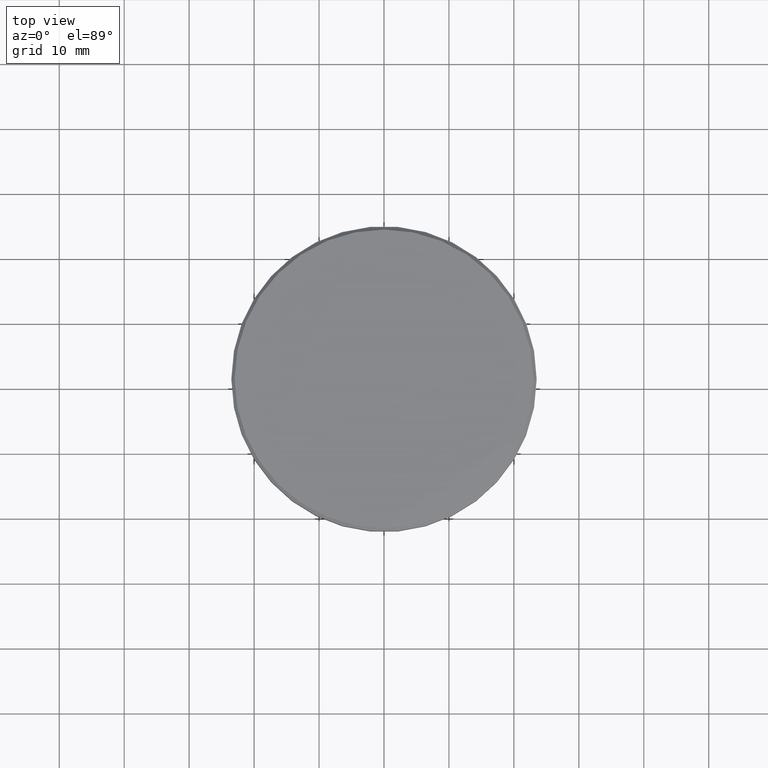
[diagram: clean part render]
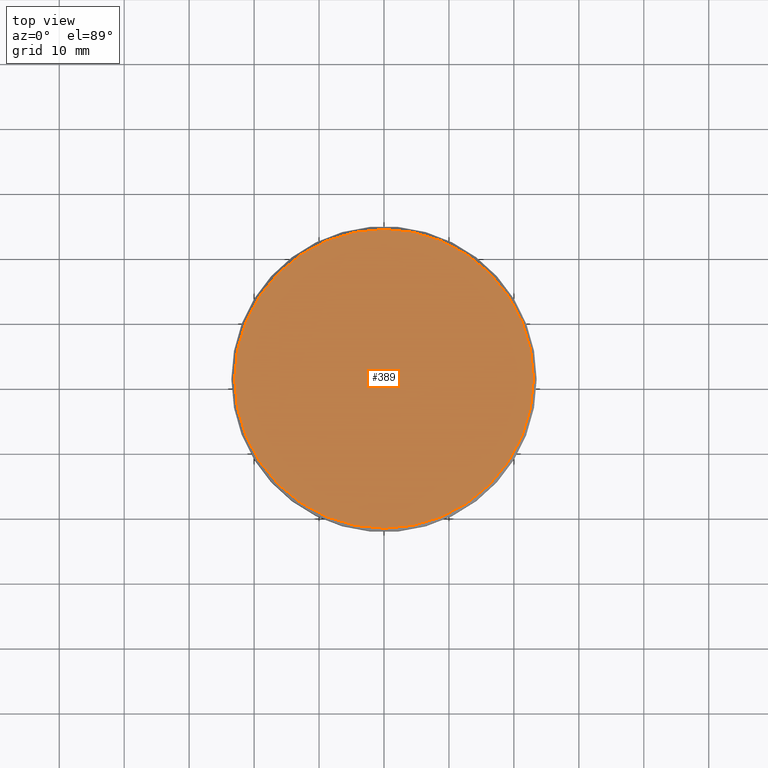
[diagram: same view with one face highlighted and labeled with its STEP entity id]
A machine part, top view. The second image highlights one B-rep face of the part: STEP entity #389.
In plain terms, the highlighted planar face has unit normal (0, -0, 1).
Its self-contained STEP definition (entity closure, byte-faithful):
#28 = DIRECTION ( 'NONE',  ( 1.000000000000000000, 0.000000000000000000, 0.000000000000000000 ) ) ;
#58 = DIRECTION ( 'NONE',  ( 1.000000000000000000, 0.000000000000000000, 0.000000000000000000 ) ) ;
#137 = DIRECTION ( 'NONE',  ( -0.000000000000000000, -0.000000000000000000, 1.000000000000000000 ) ) ;
#138 = DIRECTION ( 'NONE',  ( -0.000000000000000000, -0.000000000000000000, 1.000000000000000000 ) ) ;
#222 = CARTESIAN_POINT ( 'NONE',  ( 0.000000000000000000, 0.000000000000000000, 0.000000000000000000 ) ) ;
#241 = CIRCLE ( 'NONE', #427, 22.99999999999999645 ) ;
#275 = CARTESIAN_POINT ( 'NONE',  ( 22.99999999999999645, 2.847303808017596139E-15, 0.000000000000000000 ) ) ;
#291 = EDGE_CURVE ( 'NONE', #630, #701, #359, .T. ) ;
#359 = CIRCLE ( 'NONE', #522, 22.99999999999999645 ) ;
#389 = ADVANCED_FACE ( 'NONE', ( #1050 ), #527, .T. ) ;
#427 = AXIS2_PLACEMENT_3D ( 'NONE', #1143, #137, #702 ) ;
#522 = AXIS2_PLACEMENT_3D ( 'NONE', #222, #138, #28 ) ;
#527 = PLANE ( 'NONE',  #643 ) ;
#613 = CARTESIAN_POINT ( 'NONE',  ( -22.99999999999999645, 0.000000000000000000, 0.000000000000000000 ) ) ;
#630 = VERTEX_POINT ( 'NONE', #613 ) ;
#643 = AXIS2_PLACEMENT_3D ( 'NONE', #889, #1141, #58 ) ;
#701 = VERTEX_POINT ( 'NONE', #275 ) ;
#702 = DIRECTION ( 'NONE',  ( 1.000000000000000000, 0.000000000000000000, 0.000000000000000000 ) ) ;
#866 = ORIENTED_EDGE ( 'NONE', *, *, #291, .T. ) ;
#889 = CARTESIAN_POINT ( 'NONE',  ( 0.000000000000000000, 0.000000000000000000, 0.000000000000000000 ) ) ;
#943 = ORIENTED_EDGE ( 'NONE', *, *, #1155, .T. ) ;
#1050 = FACE_OUTER_BOUND ( 'NONE', #1054, .T. ) ;
#1054 = EDGE_LOOP ( 'NONE', ( #866, #943 ) ) ;
#1141 = DIRECTION ( 'NONE',  ( 0.000000000000000000, -0.000000000000000000, 1.000000000000000000 ) ) ;
#1143 = CARTESIAN_POINT ( 'NONE',  ( 0.000000000000000000, 0.000000000000000000, 0.000000000000000000 ) ) ;
#1155 = EDGE_CURVE ( 'NONE', #701, #630, #241, .T. ) ;